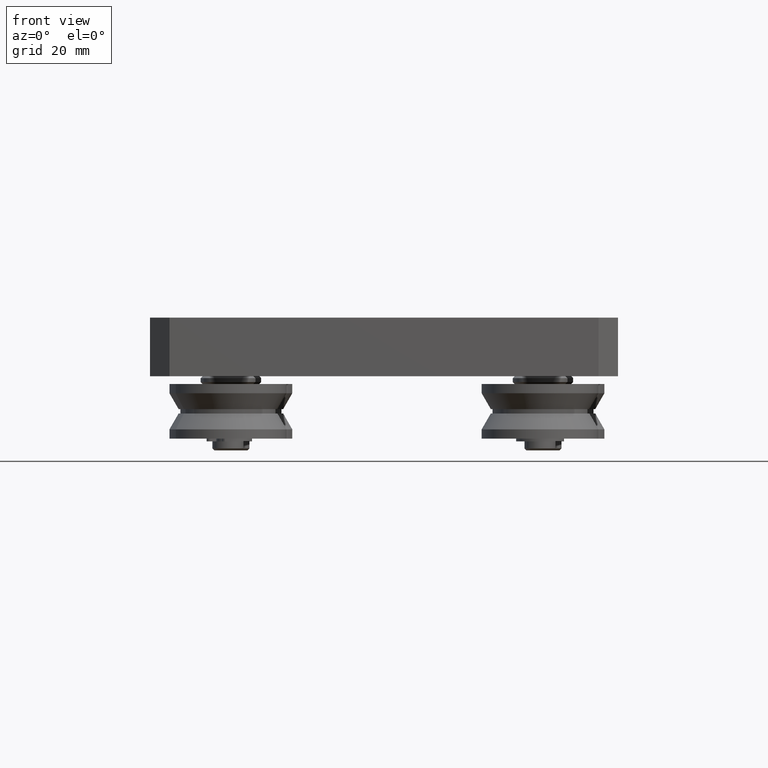
[diagram: clean part render]
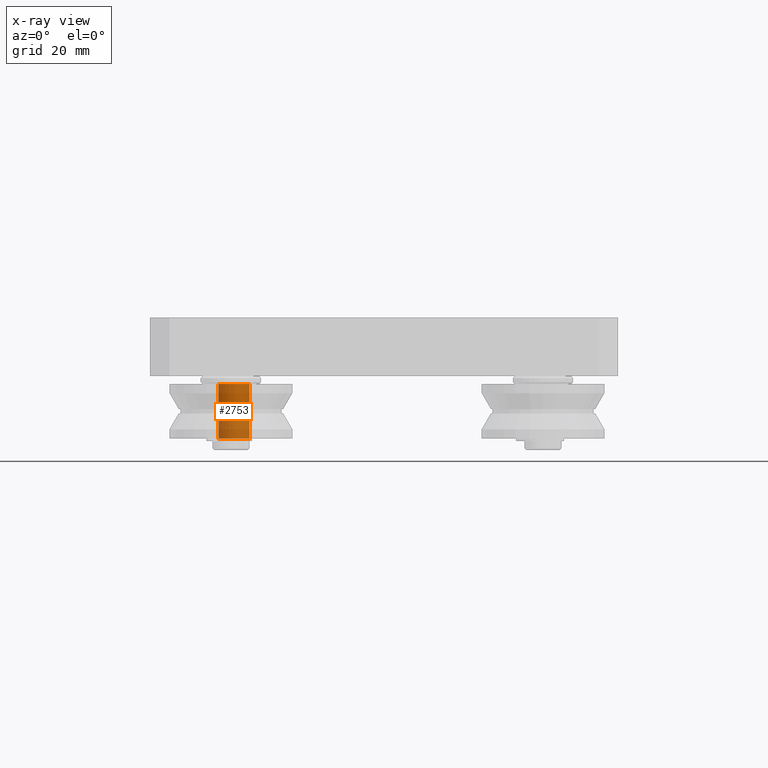
[diagram: x-ray — body ghosted, one internal face saturated and labeled with its STEP entity id]
A machine part, front view, then the same camera in x-ray: the body is ghosted and one INTERNAL B-rep face — a face not visible from any outside direction — is saturated and labeled: STEP entity #2753.
In plain terms, the highlighted cylindrical surface (bore or boss wall) has radius 4 mm, axis along (-0, 0, 1).
Its self-contained STEP definition (entity closure, byte-faithful):
#164=CYLINDRICAL_SURFACE('',#3228,4.);
#309=CIRCLE('',#3195,4.);
#325=CIRCLE('',#3227,4.);
#496=FACE_OUTER_BOUND('',#705,.T.);
#705=EDGE_LOOP('',(#2322,#2323,#2324,#2325));
#914=LINE('',#4800,#1129);
#1129=VECTOR('',#3978,4.);
#1332=VERTEX_POINT('',#4740);
#1348=VERTEX_POINT('',#4797);
#1657=EDGE_CURVE('',#1332,#1332,#309,.T.);
#1682=EDGE_CURVE('',#1348,#1348,#325,.T.);
#1683=EDGE_CURVE('',#1348,#1332,#914,.T.);
#2322=ORIENTED_EDGE('',*,*,#1682,.T.);
#2323=ORIENTED_EDGE('',*,*,#1683,.T.);
#2324=ORIENTED_EDGE('',*,*,#1657,.F.);
#2325=ORIENTED_EDGE('',*,*,#1683,.F.);
#2753=ADVANCED_FACE('',(#496),#164,.F.);
#3195=AXIS2_PLACEMENT_3D('',#4741,#3901,#3902);
#3227=AXIS2_PLACEMENT_3D('',#4798,#3974,#3975);
#3228=AXIS2_PLACEMENT_3D('',#4799,#3976,#3977);
#3901=DIRECTION('center_axis',(1.,0.,0.));
#3902=DIRECTION('ref_axis',(0.,1.,0.));
#3974=DIRECTION('center_axis',(1.,0.,0.));
#3975=DIRECTION('ref_axis',(0.,1.,0.));
#3976=DIRECTION('center_axis',(1.,0.,0.));
#3977=DIRECTION('ref_axis',(0.,1.,0.));
#3978=DIRECTION('',(-1.,0.,0.));
#4740=CARTESIAN_POINT('',(-7.00000000000002,-4.,-4.89858719658941E-16));
#4741=CARTESIAN_POINT('Origin',(-7.00000000000002,0.,0.));
#4797=CARTESIAN_POINT('',(6.99999999999998,-4.,-4.89858719658941E-16));
#4798=CARTESIAN_POINT('Origin',(6.99999999999998,0.,0.));
#4799=CARTESIAN_POINT('Origin',(-1.66533453693773E-14,0.,0.));
#4800=CARTESIAN_POINT('',(-1.66533453693773E-14,-4.,-4.89858719658941E-16));